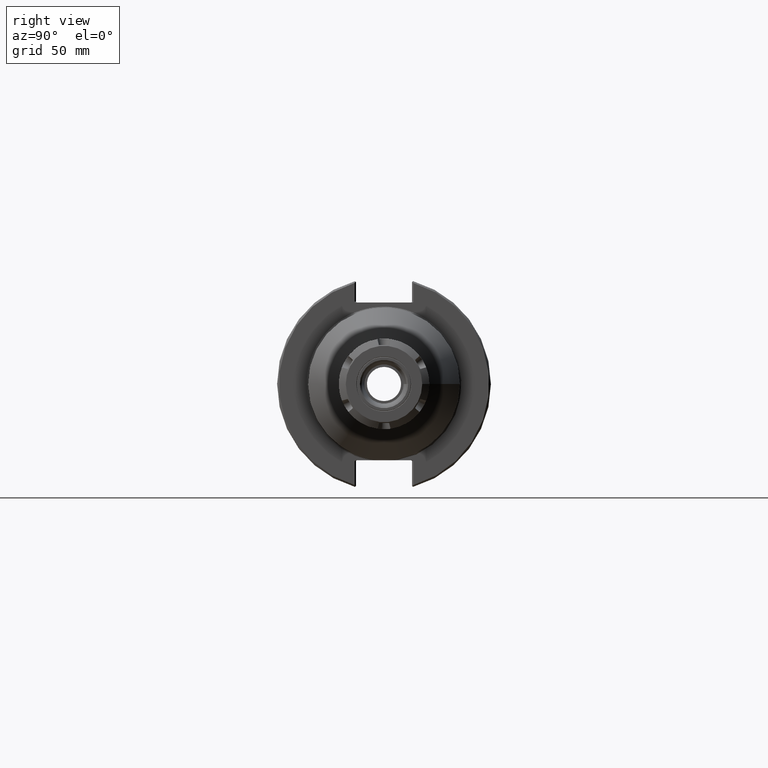
[diagram: clean part render]
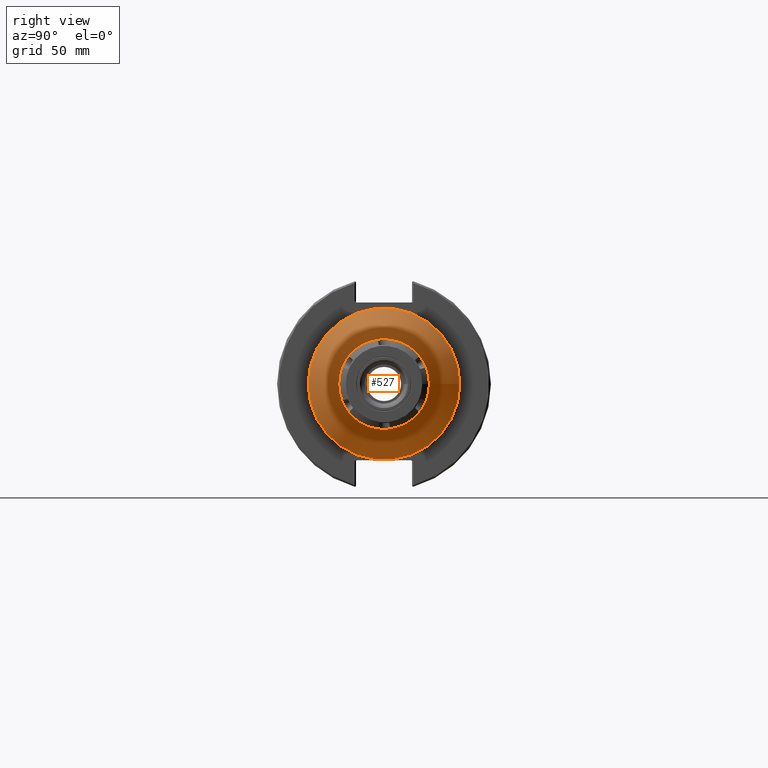
[diagram: same view with one face highlighted and labeled with its STEP entity id]
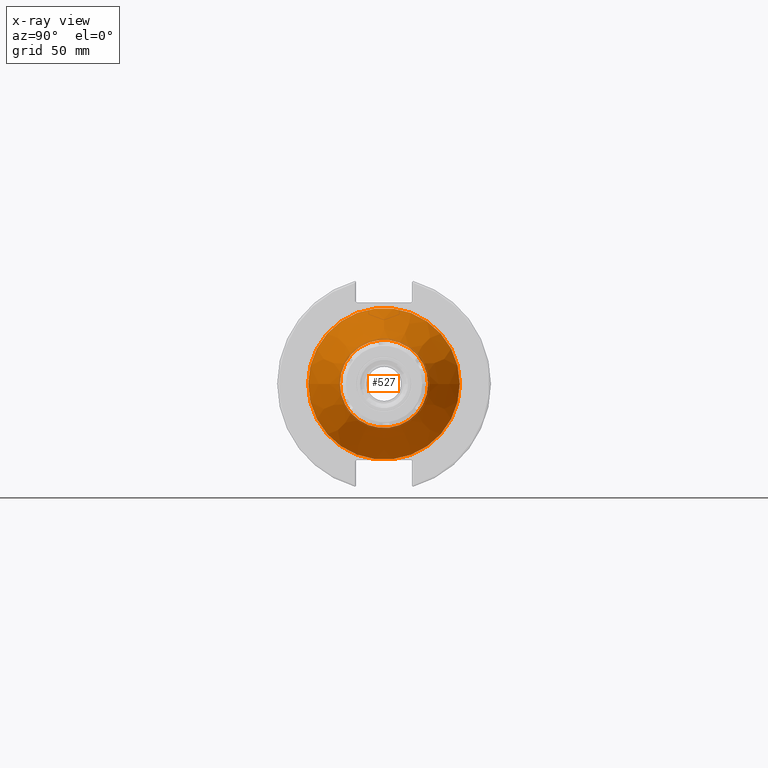
[diagram: x-ray of the same camera — body ghosted, the highlighted face saturated]
A machine part, right view. The second image highlights one B-rep face of the part: STEP entity #527.
The next image is the same camera in x-ray: the body ghosted, the highlighted face saturated — about 3% of this face is hidden behind the body in this view.
In plain terms, the highlighted conical surface has half-angle 30 deg.
Its self-contained STEP definition (entity closure, byte-faithful):
#285=CARTESIAN_POINT('',(1.38,1.375,0.0));
#286=VERTEX_POINT('',#285);
#287=CARTESIAN_POINT('',(1.38,0.0,0.0));
#288=DIRECTION('',(1.0,1.033781E-013,0.0));
#289=DIRECTION('',(-1.033781E-013,1.0,0.0));
#290=AXIS2_PLACEMENT_3D('',#287,#288,#289);
#291=CIRCLE('',#290,1.375);
#292=EDGE_CURVE('',#286,#286,#291,.T.);
#508=CARTESIAN_POINT('',(1.880129670685513,0.0,0.0));
#509=DIRECTION('',(-1.0,0.0,0.0));
#510=DIRECTION('',(0.0,1.0,0.0));
#511=AXIS2_PLACEMENT_3D('',#508,#509,#510);
#512=CONICAL_SURFACE('',#511,1.08625,30.000000000000021);
#513=CARTESIAN_POINT('',(2.380259341371026,0.7975,0.0));
#514=VERTEX_POINT('',#513);
#515=CARTESIAN_POINT('',(2.380259341371026,0.0,0.0));
#516=DIRECTION('',(1.0,0.0,0.0));
#517=DIRECTION('',(0.0,1.0,0.0));
#518=AXIS2_PLACEMENT_3D('',#515,#516,#517);
#519=CIRCLE('',#518,0.7975);
#520=EDGE_CURVE('',#514,#514,#519,.T.);
#521=ORIENTED_EDGE('',*,*,#520,.F.);
#522=EDGE_LOOP('',(#521));
#523=FACE_OUTER_BOUND('',#522,.T.);
#524=ORIENTED_EDGE('',*,*,#292,.T.);
#525=EDGE_LOOP('',(#524));
#526=FACE_BOUND('',#525,.T.);
#527=ADVANCED_FACE('',(#523,#526),#512,.T.);